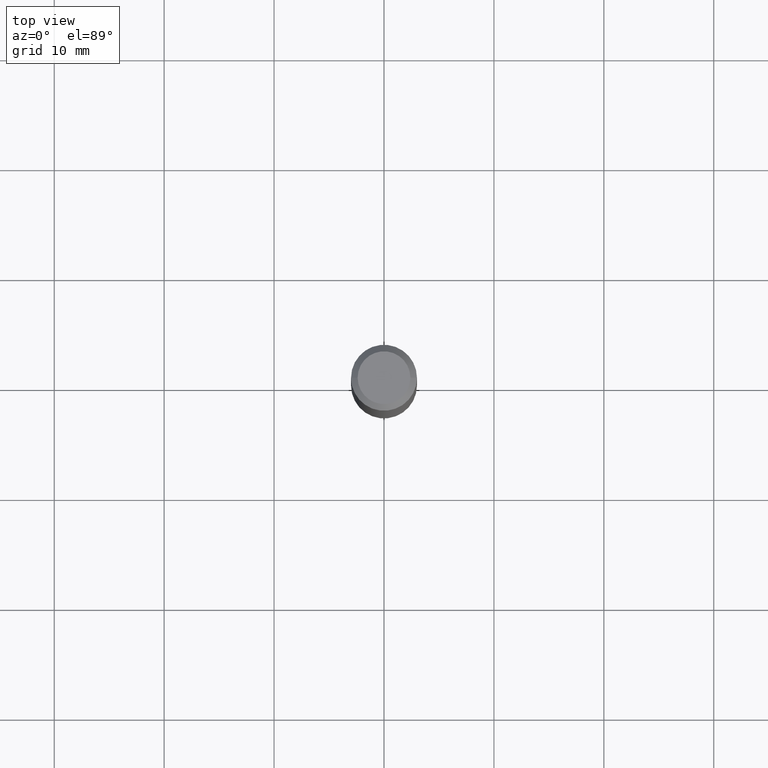
[diagram: clean part render]
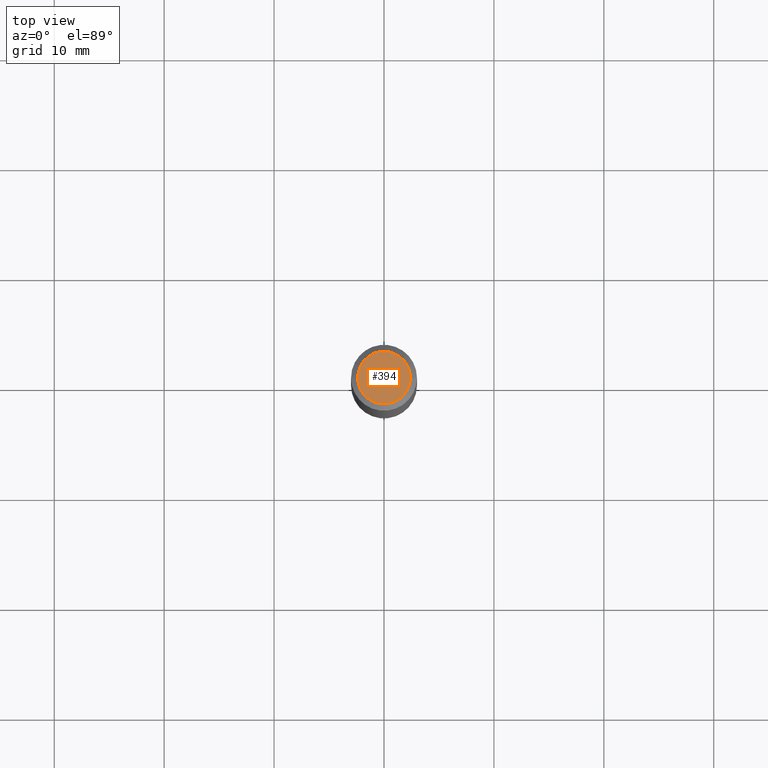
[diagram: same view with one face highlighted and labeled with its STEP entity id]
A machine part, top view. The second image highlights one B-rep face of the part: STEP entity #394.
In plain terms, the highlighted planar face has unit normal (0, -0, -1).
Its self-contained STEP definition (entity closure, byte-faithful):
#9 = DIRECTION ( 'NONE',  ( 1.000000000000000000, -6.982962677686267499E-15, 4.875432709231658792E-29 ) ) ;
#24 = PLANE ( 'NONE',  #119 ) ;
#55 = EDGE_CURVE ( 'NONE', #284, #299, #245, .T. ) ;
#64 = DIRECTION ( 'NONE',  ( -1.000000000000000000, 6.982962677686265922E-15, -4.876176775795935793E-29 ) ) ;
#77 = AXIS2_PLACEMENT_3D ( 'NONE', #118, #383, #242 ) ;
#118 = CARTESIAN_POINT ( 'NONE',  ( 4.716267017698007905E-46, -6.733579360998555036E-32, -1.928573779297252010E-17 ) ) ;
#119 = AXIS2_PLACEMENT_3D ( 'NONE', #413, #264, #64 ) ;
#135 = CARTESIAN_POINT ( 'NONE',  ( 0.09447999999999998066, -7.704367267948738690E-16, -1.928573779296752193E-17 ) ) ;
#136 = ORIENTED_EDGE ( 'NONE', *, *, #55, .T. ) ;
#142 = EDGE_LOOP ( 'NONE', ( #136, #410 ) ) ;
#242 = DIRECTION ( 'NONE',  ( 1.000000000000000000, -6.982962677686267499E-15, 4.875432709231658792E-29 ) ) ;
#245 = CIRCLE ( 'NONE', #77, 0.09447999999999998066 ) ;
#250 = AXIS2_PLACEMENT_3D ( 'NONE', #319, #285, #9 ) ;
#264 = DIRECTION ( 'NONE',  ( 2.438088387897960049E-29, -3.491481338843145188E-15, -1.000000000000000000 ) ) ;
#284 = VERTEX_POINT ( 'NONE', #396 ) ;
#285 = DIRECTION ( 'NONE',  ( -2.445468806185136597E-29, 3.491481338843145583E-15, 1.000000000000000000 ) ) ;
#290 = EDGE_CURVE ( 'NONE', #299, #284, #422, .T. ) ;
#299 = VERTEX_POINT ( 'NONE', #135 ) ;
#319 = CARTESIAN_POINT ( 'NONE',  ( 4.716267017698007905E-46, -6.733579360998555036E-32, -1.928573779297252010E-17 ) ) ;
#383 = DIRECTION ( 'NONE',  ( -2.445468806185136597E-29, 3.491481338843145583E-15, 1.000000000000000000 ) ) ;
#394 = ADVANCED_FACE ( 'NONE', ( #446 ), #24, .F. ) ;
#396 = CARTESIAN_POINT ( 'NONE',  ( -0.09447999999999998066, 7.009847083995354710E-16, -1.928573779297727792E-17 ) ) ;
#410 = ORIENTED_EDGE ( 'NONE', *, *, #290, .T. ) ;
#413 = CARTESIAN_POINT ( 'NONE',  ( 2.358133508849003952E-46, -3.366789680499277518E-32, -9.642868896486260050E-18 ) ) ;
#422 = CIRCLE ( 'NONE', #250, 0.09447999999999998066 ) ;
#446 = FACE_OUTER_BOUND ( 'NONE', #142, .T. ) ;